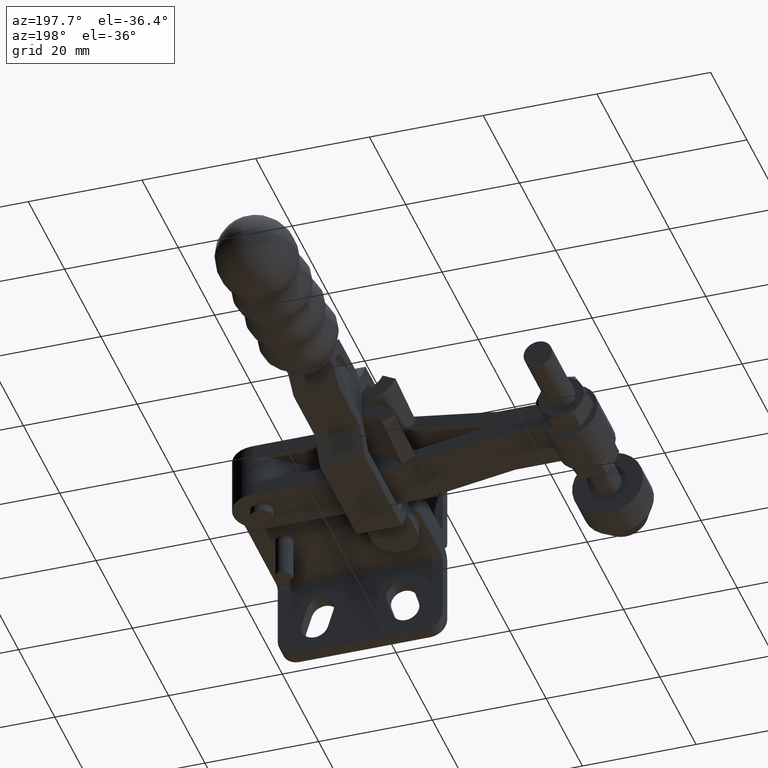
[diagram: clean part render]
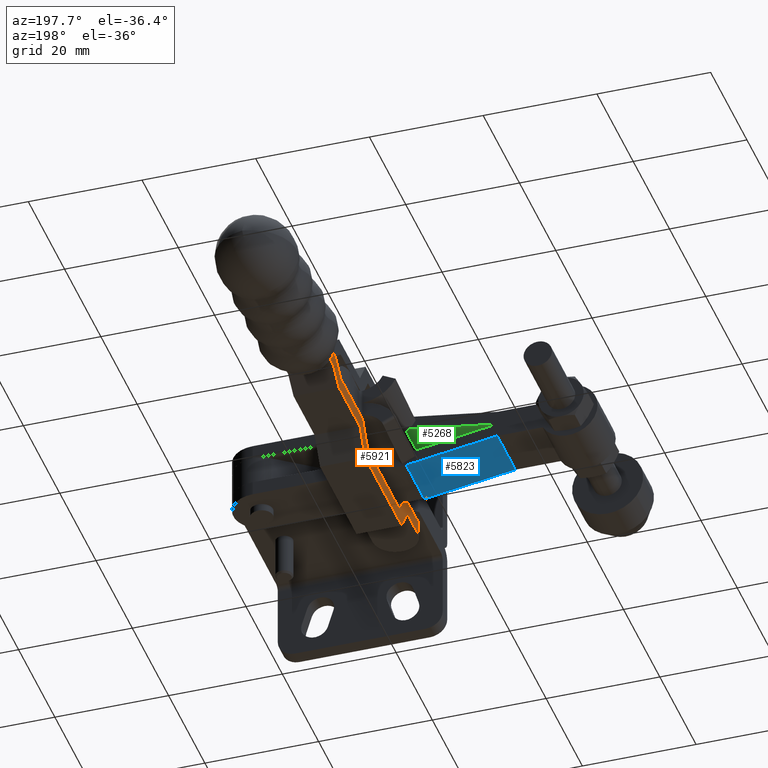
[diagram: same view with three faces highlighted in distinct colors, each labeled with its STEP entity id]
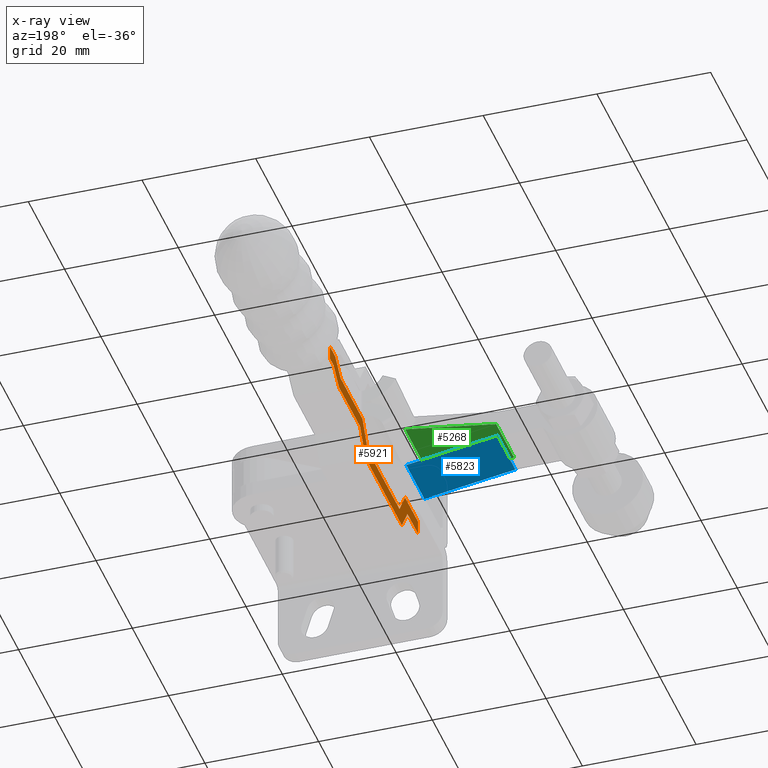
[diagram: x-ray of the same camera — body ghosted, the three highlighted faces saturated]
A machine part, auxiliary view with three faces highlighted in distinct colors.
The next image is the same camera in x-ray (body ghosted, the three faces saturated) — at least one of them is partly hidden behind the body in this view.
Their STEP definitions:

[orange] entity #5921 — the highlighted planar face has unit normal (1, -0.0014, -0).
#35 = DIRECTION ( 'NONE',  ( 0.001365529430395566700, 0.9999990676642527300, 1.623454733339555200E-015 ) ) ;
#93 = LINE ( 'NONE', #3983, #5896 ) ;
#109 = DIRECTION ( 'NONE',  ( 0.0007574594429917786100, 0.5546996790584247700, -0.8320502943378319500 ) ) ;
#161 = EDGE_CURVE ( 'NONE', #9525, #3526, #5565, .T. ) ;
#362 = CARTESIAN_POINT ( 'NONE',  ( -27.99024917702847000, 20.14341485896658000, -2.499999999999976500 ) ) ;
#375 = VECTOR ( 'NONE', #9231, 1000.000000000000000 ) ;
#397 = VECTOR ( 'NONE', #9574, 1000.000000000000000 ) ;
#421 = ORIENTED_EDGE ( 'NONE', *, *, #2937, .F. ) ;
#579 = ORIENTED_EDGE ( 'NONE', *, *, #4983, .F. ) ;
#610 = DIRECTION ( 'NONE',  ( -4.209980363289366700E-017, 1.623513735520322900E-015, -1.000000000000000000 ) ) ;
#614 = ORIENTED_EDGE ( 'NONE', *, *, #3030, .F. ) ;
#900 = VERTEX_POINT ( 'NONE', #3387 ) ;
#962 = LINE ( 'NONE', #8857, #4747 ) ;
#977 = ORIENTED_EDGE ( 'NONE', *, *, #4538, .F. ) ;
#1220 = CARTESIAN_POINT ( 'NONE',  ( -27.94621214967062500, 52.39243514393094600, -4.999999989239906900E-005 ) ) ;
#1278 = ORIENTED_EDGE ( 'NONE', *, *, #3418, .F. ) ;
#1294 = LINE ( 'NONE', #9101, #8738 ) ;
#1396 = ORIENTED_EDGE ( 'NONE', *, *, #8708, .F. ) ;
#1414 = CARTESIAN_POINT ( 'NONE',  ( -27.99999627065697900, 13.00546211772145200, 9.500000000000083500 ) ) ;
#1437 = EDGE_CURVE ( 'NONE', #5548, #4705, #9448, .T. ) ;
#1619 = EDGE_CURVE ( 'NONE', #4705, #5800, #8967, .T. ) ;
#1689 = DIRECTION ( 'NONE',  ( 0.0007574594429917443500, 0.5546996790583915700, 0.8320502943378540500 ) ) ;
#1823 = EDGE_CURVE ( 'NONE', #900, #9334, #2444, .T. ) ;
#1905 = LINE ( 'NONE', #1414, #7577 ) ;
#1926 = VECTOR ( 'NONE', #7178, 1000.000000000000000 ) ;
#1938 = DIRECTION ( 'NONE',  ( 4.304733001691146300E-017, -9.296249920674827500E-016, 1.000000000000000000 ) ) ;
#1988 = LINE ( 'NONE', #9036, #9667 ) ;
#2107 = CARTESIAN_POINT ( 'NONE',  ( -27.96249604599379200, 40.46747711765942100, -6.999999999999946700 ) ) ;
#2166 = LINE ( 'NONE', #4979, #3966 ) ;
#2444 = LINE ( 'NONE', #1220, #397 ) ;
#2558 = CARTESIAN_POINT ( 'NONE',  ( -27.99024917702847000, 20.14341485896658000, -2.499999999999976500 ) ) ;
#2639 = EDGE_CURVE ( 'NONE', #3526, #3996, #8203, .T. ) ;
#2668 = ORIENTED_EDGE ( 'NONE', *, *, #3691, .F. ) ;
#2717 = VECTOR ( 'NONE', #4183, 1000.000000000000100 ) ;
#2937 = EDGE_CURVE ( 'NONE', #3996, #8971, #3161, .T. ) ;
#3004 = CARTESIAN_POINT ( 'NONE',  ( -27.97115027738603400, 34.12984489168494000, 23.47966460916807900 ) ) ;
#3030 = EDGE_CURVE ( 'NONE', #7697, #9334, #6955, .T. ) ;
#3033 = VECTOR ( 'NONE', #1938, 1000.000000000000000 ) ;
#3071 = CARTESIAN_POINT ( 'NONE',  ( -27.96066902306158800, 41.80543526645200100, -9.499999999999948500 ) ) ;
#3161 = LINE ( 'NONE', #3332, #375 ) ;
#3332 = CARTESIAN_POINT ( 'NONE',  ( -27.98615258873728000, 23.14341206195944900, -6.999999999999963600 ) ) ;
#3387 = CARTESIAN_POINT ( 'NONE',  ( -27.93800831456583100, 58.40023495655902500, -4.999999988411875300E-005 ) ) ;
#3418 = EDGE_CURVE ( 'NONE', #7644, #4399, #5690, .T. ) ;
#3517 = ORIENTED_EDGE ( 'NONE', *, *, #1619, .F. ) ;
#3526 = VERTEX_POINT ( 'NONE', #8407 ) ;
#3594 = VECTOR ( 'NONE', #8390, 1000.000000000000000 ) ;
#3653 = EDGE_CURVE ( 'NONE', #900, #9525, #2166, .T. ) ;
#3678 = ORIENTED_EDGE ( 'NONE', *, *, #2639, .F. ) ;
#3691 = EDGE_CURVE ( 'NONE', #7270, #7697, #5911, .T. ) ;
#3749 = ORIENTED_EDGE ( 'NONE', *, *, #3653, .F. ) ;
#3852 = ORIENTED_EDGE ( 'NONE', *, *, #5169, .F. ) ;
#3966 = VECTOR ( 'NONE', #9361, 1000.000000000000100 ) ;
#3983 = CARTESIAN_POINT ( 'NONE',  ( -28.00545838837856400, 9.005465847064318300, -4.999999999999999100 ) ) ;
#3996 = VERTEX_POINT ( 'NONE', #6191 ) ;
#4127 = CARTESIAN_POINT ( 'NONE',  ( -27.99207619996068200, 18.80545671017400300, -4.999999999999979600 ) ) ;
#4183 = DIRECTION ( 'NONE',  ( -0.0007574594429917497700, -0.5546996790584239900, 0.8320502943378324000 ) ) ;
#4201 = ORIENTED_EDGE ( 'NONE', *, *, #1823, .T. ) ;
#4217 = CARTESIAN_POINT ( 'NONE',  ( -27.93404119916887000, 61.30541708590457300, 1.207933562568701100E-013 ) ) ;
#4222 = ORIENTED_EDGE ( 'NONE', *, *, #161, .F. ) ;
#4332 = VECTOR ( 'NONE', #5833, 999.9999999999998900 ) ;
#4354 = CARTESIAN_POINT ( 'NONE',  ( -27.94086884632084600, 56.30542174758342400, -4.999999999999914700 ) ) ;
#4399 = VERTEX_POINT ( 'NONE', #7381 ) ;
#4522 = DIRECTION ( 'NONE',  ( 0.001049028766346343400, 0.7682205633572023500, 0.6401843996644950300 ) ) ;
#4538 = EDGE_CURVE ( 'NONE', #5564, #7684, #93, .T. ) ;
#4705 = VERTEX_POINT ( 'NONE', #5679 ) ;
#4747 = VECTOR ( 'NONE', #4522, 1000.000000000000100 ) ;
#4810 = CARTESIAN_POINT ( 'NONE',  ( -27.96066902306158800, 41.80543526645200100, -9.499999999999948500 ) ) ;
#4925 = EDGE_CURVE ( 'NONE', #4399, #5564, #1905, .T. ) ;
#4940 = EDGE_LOOP ( 'NONE', ( #614, #2668, #579, #3517, #5856, #6320, #1396, #977, #7599, #1278, #3852, #421, #3678, #4222, #3749, #4201 ) ) ;
#4979 = CARTESIAN_POINT ( 'NONE',  ( -27.94210482092524800, 55.40029775351040800, -2.499999999999919200 ) ) ;
#4983 = EDGE_CURVE ( 'NONE', #5800, #7270, #962, .T. ) ;
#5169 = EDGE_CURVE ( 'NONE', #8971, #7644, #8607, .T. ) ;
#5263 = DIRECTION ( 'NONE',  ( 0.9999990676642527300, -0.001365529430395566700, -4.431672016822974400E-017 ) ) ;
#5404 = EDGE_CURVE ( 'NONE', #8171, #5548, #1988, .T. ) ;
#5523 = CARTESIAN_POINT ( 'NONE',  ( -27.93404119916887000, 61.30541708590457300, -4.999999988190599100E-005 ) ) ;
#5532 = CARTESIAN_POINT ( 'NONE',  ( -27.98797961166949500, 21.80545391316693900, -9.499999999999982200 ) ) ;
#5545 = VECTOR ( 'NONE', #1689, 1000.000000000000200 ) ;
#5548 = VERTEX_POINT ( 'NONE', #4810 ) ;
#5564 = VERTEX_POINT ( 'NONE', #9211 ) ;
#5565 = LINE ( 'NONE', #9611, #3594 ) ;
#5679 = CARTESIAN_POINT ( 'NONE',  ( -27.95657243477038300, 44.80543246944466100, -4.999999999999937800 ) ) ;
#5690 = LINE ( 'NONE', #8284, #9364 ) ;
#5699 = CARTESIAN_POINT ( 'NONE',  ( -27.93677225802966300, 59.30541895057606200, -2.499999999999909800 ) ) ;
#5792 = CARTESIAN_POINT ( 'NONE',  ( -27.95657243477038300, 44.80543246944466100, -4.999999999999937800 ) ) ;
#5800 = VERTEX_POINT ( 'NONE', #4354 ) ;
#5833 = DIRECTION ( 'NONE',  ( -0.0007574594429916874300, -0.5546996790583904600, -0.8320502943378548200 ) ) ;
#5856 = ORIENTED_EDGE ( 'NONE', *, *, #1437, .F. ) ;
#5896 = VECTOR ( 'NONE', #6900, 1000.000000000000000 ) ;
#5911 = LINE ( 'NONE', #5699, #1926 ) ;
#5921 = ADVANCED_FACE ( 'NONE', ( #8137 ), #6706, .F. ) ;
#6191 = CARTESIAN_POINT ( 'NONE',  ( -27.96249604599379200, 40.46747711765942100, -6.999999999999946700 ) ) ;
#6320 = ORIENTED_EDGE ( 'NONE', *, *, #5404, .F. ) ;
#6706 = PLANE ( 'NONE',  #9727 ) ;
#6900 = DIRECTION ( 'NONE',  ( 0.001365529430395566700, 0.9999990676642527300, 1.637615741306713100E-015 ) ) ;
#6955 = LINE ( 'NONE', #4217, #3033 ) ;
#6990 = VECTOR ( 'NONE', #8649, 1000.000000000000000 ) ;
#7178 = DIRECTION ( 'NONE',  ( 0.001365529430395566700, 0.9999990676642527300, 1.707032447028069300E-015 ) ) ;
#7270 = VERTEX_POINT ( 'NONE', #8535 ) ;
#7381 = CARTESIAN_POINT ( 'NONE',  ( -27.99999627065696500, 13.00546211772148000, -2.499999999999994200 ) ) ;
#7577 = VECTOR ( 'NONE', #610, 1000.000000000000000 ) ;
#7599 = ORIENTED_EDGE ( 'NONE', *, *, #4925, .F. ) ;
#7644 = VERTEX_POINT ( 'NONE', #2558 ) ;
#7684 = VERTEX_POINT ( 'NONE', #4127 ) ;
#7697 = VERTEX_POINT ( 'NONE', #8524 ) ;
#7918 = CARTESIAN_POINT ( 'NONE',  ( -27.94210482092524800, 55.40029775351040800, -2.499999999999919200 ) ) ;
#7952 = CARTESIAN_POINT ( 'NONE',  ( -27.98615258873728000, 23.14341206195944900, -6.999999999999963600 ) ) ;
#8137 = FACE_OUTER_BOUND ( 'NONE', #4940, .T. ) ;
#8167 = DIRECTION ( 'NONE',  ( 0.001365529430395566700, 0.9999990676642527300, 9.295653429488339400E-016 ) ) ;
#8171 = VERTEX_POINT ( 'NONE', #5532 ) ;
#8203 = LINE ( 'NONE', #2107, #4332 ) ;
#8284 = CARTESIAN_POINT ( 'NONE',  ( -28.00545838837856700, 9.005465847064327200, -2.500000000000004900 ) ) ;
#8390 = DIRECTION ( 'NONE',  ( -0.001365529430395566700, -0.9999990676642527300, -4.934434473070992100E-016 ) ) ;
#8407 = CARTESIAN_POINT ( 'NONE',  ( -27.95839945770261200, 43.46747432065207300, -2.499999999999923600 ) ) ;
#8524 = CARTESIAN_POINT ( 'NONE',  ( -27.93404119916887400, 61.30541708590457300, -2.499999999999905000 ) ) ;
#8535 = CARTESIAN_POINT ( 'NONE',  ( -27.93677225802966300, 59.30541895057606200, -2.499999999999909800 ) ) ;
#8607 = LINE ( 'NONE', #362, #2717 ) ;
#8649 = DIRECTION ( 'NONE',  ( 0.001365529430395566700, 0.9999990676642527300, 1.683792941199628400E-015 ) ) ;
#8708 = EDGE_CURVE ( 'NONE', #7684, #8171, #1294, .T. ) ;
#8738 = VECTOR ( 'NONE', #109, 1000.000000000000100 ) ;
#8857 = CARTESIAN_POINT ( 'NONE',  ( -27.94086884632084600, 56.30542174758342400, -4.999999999999914700 ) ) ;
#8967 = LINE ( 'NONE', #5792, #6990 ) ;
#8971 = VERTEX_POINT ( 'NONE', #7952 ) ;
#9036 = CARTESIAN_POINT ( 'NONE',  ( -27.98797961166949500, 21.80545391316693900, -9.499999999999982200 ) ) ;
#9099 = DIRECTION ( 'NONE',  ( -0.001365529430395566700, -0.9999990676642527300, -2.642801812658085700E-015 ) ) ;
#9101 = CARTESIAN_POINT ( 'NONE',  ( -27.99207619996068200, 18.80545671017400300, -4.999999999999979600 ) ) ;
#9211 = CARTESIAN_POINT ( 'NONE',  ( -27.99999627065697500, 13.00546211772147100, -4.999999999999991100 ) ) ;
#9231 = DIRECTION ( 'NONE',  ( -0.001365529430395566700, -0.9999990676642527300, -9.295653429488339400E-016 ) ) ;
#9334 = VERTEX_POINT ( 'NONE', #5523 ) ;
#9361 = DIRECTION ( 'NONE',  ( -0.001049028766346341900, -0.7682205633572013500, -0.6401843996644963600 ) ) ;
#9364 = VECTOR ( 'NONE', #9099, 1000.000000000000000 ) ;
#9448 = LINE ( 'NONE', #3071, #5545 ) ;
#9525 = VERTEX_POINT ( 'NONE', #7918 ) ;
#9574 = DIRECTION ( 'NONE',  ( 0.001365529430395566700, 0.9999990676642527300, 1.177279159209693500E-015 ) ) ;
#9611 = CARTESIAN_POINT ( 'NONE',  ( -27.95839945770261200, 43.46747432065207300, -2.499999999999923600 ) ) ;
#9667 = VECTOR ( 'NONE', #35, 1000.000000000000000 ) ;
#9727 = AXIS2_PLACEMENT_3D ( 'NONE', #3004, #5263, #8167 ) ;

[blue] entity #5823 — the highlighted planar face has unit normal (0.1544, 0, 0.988).
#74 = VERTEX_POINT ( 'NONE', #2144 ) ;
#531 = ORIENTED_EDGE ( 'NONE', *, *, #8705, .T. ) ;
#578 = VECTOR ( 'NONE', #6338, 1000.000000000000000 ) ;
#620 = DIRECTION ( 'NONE',  ( 0.9880120337511013600, 1.347685115860028200E-016, -0.1543768802736094300 ) ) ;
#756 = EDGE_CURVE ( 'NONE', #6504, #1618, #8289, .T. ) ;
#1227 = EDGE_CURVE ( 'NONE', #74, #6504, #8387, .T. ) ;
#1618 = VERTEX_POINT ( 'NONE', #8382 ) ;
#1896 = FACE_OUTER_BOUND ( 'NONE', #5465, .T. ) ;
#2063 = LINE ( 'NONE', #5908, #5813 ) ;
#2144 = CARTESIAN_POINT ( 'NONE',  ( -48.00413474070141000, 22.00000000000002800, -2.499999999999952000 ) ) ;
#2307 = CARTESIAN_POINT ( 'NONE',  ( -48.00413474070141000, 32.00000000000002800, -2.499999999999952000 ) ) ;
#2697 = EDGE_CURVE ( 'NONE', #6991, #1618, #2063, .T. ) ;
#2834 = ORIENTED_EDGE ( 'NONE', *, *, #756, .F. ) ;
#2922 = DIRECTION ( 'NONE',  ( 0.1543768802736094600, 6.237316864123476200E-018, 0.9880120337511014700 ) ) ;
#3105 = VECTOR ( 'NONE', #6854, 1000.000000000000000 ) ;
#3246 = CARTESIAN_POINT ( 'NONE',  ( -32.00413474070137500, 22.00000000000002800, -4.999999999999954700 ) ) ;
#4419 = PLANE ( 'NONE',  #5768 ) ;
#5465 = EDGE_LOOP ( 'NONE', ( #7870, #2834, #9328, #531 ) ) ;
#5768 = AXIS2_PLACEMENT_3D ( 'NONE', #7328, #2922, #8065 ) ;
#5813 = VECTOR ( 'NONE', #620, 1000.000000000000200 ) ;
#5823 = ADVANCED_FACE ( 'NONE', ( #1896 ), #4419, .F. ) ;
#5908 = CARTESIAN_POINT ( 'NONE',  ( -32.00413474070137500, 32.00000000000002800, -4.999999999999953800 ) ) ;
#5964 = CARTESIAN_POINT ( 'NONE',  ( -32.00413474070137500, 22.00000000000002800, -4.999999999999954700 ) ) ;
#6338 = DIRECTION ( 'NONE',  ( -1.341158087364569000E-016, 1.000000000000000000, 1.464259825769222200E-017 ) ) ;
#6434 = VECTOR ( 'NONE', #7339, 1000.000000000000200 ) ;
#6504 = VERTEX_POINT ( 'NONE', #5964 ) ;
#6778 = CARTESIAN_POINT ( 'NONE',  ( -32.00413474070137500, 22.00000000000002800, -4.999999999999954700 ) ) ;
#6854 = DIRECTION ( 'NONE',  ( -1.341158087364569000E-016, 1.000000000000000000, 1.464259825769222200E-017 ) ) ;
#6991 = VERTEX_POINT ( 'NONE', #2307 ) ;
#7013 = LINE ( 'NONE', #9074, #3105 ) ;
#7328 = CARTESIAN_POINT ( 'NONE',  ( -32.00413474070137500, 22.00000000000002800, -4.999999999999954700 ) ) ;
#7339 = DIRECTION ( 'NONE',  ( 0.9880120337511013600, 1.347685115860028200E-016, -0.1543768802736094300 ) ) ;
#7870 = ORIENTED_EDGE ( 'NONE', *, *, #2697, .T. ) ;
#8065 = DIRECTION ( 'NONE',  ( -0.9880120337511013600, -1.347685115860028400E-016, 0.1543768802736094300 ) ) ;
#8289 = LINE ( 'NONE', #6778, #578 ) ;
#8382 = CARTESIAN_POINT ( 'NONE',  ( -32.00413474070137500, 32.00000000000002800, -4.999999999999953800 ) ) ;
#8387 = LINE ( 'NONE', #3246, #6434 ) ;
#8705 = EDGE_CURVE ( 'NONE', #74, #6991, #7013, .T. ) ;
#9074 = CARTESIAN_POINT ( 'NONE',  ( -48.00413474070141000, 22.00000000000002800, -2.499999999999952000 ) ) ;
#9328 = ORIENTED_EDGE ( 'NONE', *, *, #1227, .F. ) ;

[green] entity #5268 — the highlighted planar face has unit normal (-0.1544, 0, 0.988).
#68 = VERTEX_POINT ( 'NONE', #8198 ) ;
#108 = EDGE_CURVE ( 'NONE', #7327, #5871, #6027, .T. ) ;
#255 = DIRECTION ( 'NONE',  ( -0.0000000000000000000, -1.000000000000000000, -0.0000000000000000000 ) ) ;
#396 = VECTOR ( 'NONE', #433, 1000.000000000000100 ) ;
#433 = DIRECTION ( 'NONE',  ( -0.9880120337511013600, 0.0000000000000000000, -0.1543768802736093000 ) ) ;
#651 = CARTESIAN_POINT ( 'NONE',  ( -31.80999999999976100, 32.00000000000002800, 2.500000000000038600 ) ) ;
#815 = VECTOR ( 'NONE', #4812, 1000.000000000000000 ) ;
#1130 = EDGE_LOOP ( 'NONE', ( #9571, #6744, #3109, #7920 ) ) ;
#1379 = VECTOR ( 'NONE', #255, 1000.000000000000000 ) ;
#2178 = EDGE_CURVE ( 'NONE', #8856, #7327, #3177, .T. ) ;
#2871 = DIRECTION ( 'NONE',  ( -0.1543768802736093200, 0.0000000000000000000, 0.9880120337511014700 ) ) ;
#3109 = ORIENTED_EDGE ( 'NONE', *, *, #7801, .F. ) ;
#3177 = LINE ( 'NONE', #651, #1379 ) ;
#3357 = CARTESIAN_POINT ( 'NONE',  ( -31.80999999999976100, 32.00000000000002800, 2.500000000000038600 ) ) ;
#3858 = AXIS2_PLACEMENT_3D ( 'NONE', #7279, #2871, #8021 ) ;
#4156 = FACE_OUTER_BOUND ( 'NONE', #1130, .T. ) ;
#4364 = PLANE ( 'NONE',  #3858 ) ;
#4383 = LINE ( 'NONE', #9213, #815 ) ;
#4812 = DIRECTION ( 'NONE',  ( -0.0000000000000000000, -1.000000000000000000, -0.0000000000000000000 ) ) ;
#5268 = ADVANCED_FACE ( 'NONE', ( #4156 ), #4364, .F. ) ;
#5691 = CARTESIAN_POINT ( 'NONE',  ( -31.80999999999976100, 32.00000000000002800, 2.500000000000038600 ) ) ;
#5700 = CARTESIAN_POINT ( 'NONE',  ( -31.80999999999976100, 22.00000000000002800, 2.500000000000038600 ) ) ;
#5871 = VERTEX_POINT ( 'NONE', #5915 ) ;
#5915 = CARTESIAN_POINT ( 'NONE',  ( -47.80999999999976100, 22.00000000000002800, 4.762707701747630200E-014 ) ) ;
#6027 = LINE ( 'NONE', #9348, #9722 ) ;
#6744 = ORIENTED_EDGE ( 'NONE', *, *, #8834, .F. ) ;
#7279 = CARTESIAN_POINT ( 'NONE',  ( -31.80999999999976100, 32.00000000000002800, 2.500000000000038600 ) ) ;
#7327 = VERTEX_POINT ( 'NONE', #5700 ) ;
#7801 = EDGE_CURVE ( 'NONE', #8856, #68, #8333, .T. ) ;
#7920 = ORIENTED_EDGE ( 'NONE', *, *, #2178, .T. ) ;
#7963 = DIRECTION ( 'NONE',  ( -0.9880120337511013600, 0.0000000000000000000, -0.1543768802736093000 ) ) ;
#8021 = DIRECTION ( 'NONE',  ( 0.9880120337511013600, 0.0000000000000000000, 0.1543768802736093000 ) ) ;
#8198 = CARTESIAN_POINT ( 'NONE',  ( -47.80999999999976100, 32.00000000000002800, 4.777350300005322100E-014 ) ) ;
#8333 = LINE ( 'NONE', #5691, #396 ) ;
#8834 = EDGE_CURVE ( 'NONE', #68, #5871, #4383, .T. ) ;
#8856 = VERTEX_POINT ( 'NONE', #3357 ) ;
#9213 = CARTESIAN_POINT ( 'NONE',  ( -47.80999999999976100, 32.00000000000002800, 4.292665387248010700E-014 ) ) ;
#9348 = CARTESIAN_POINT ( 'NONE',  ( -31.80999999999976100, 22.00000000000002800, 2.500000000000038600 ) ) ;
#9571 = ORIENTED_EDGE ( 'NONE', *, *, #108, .T. ) ;
#9722 = VECTOR ( 'NONE', #7963, 1000.000000000000100 ) ;